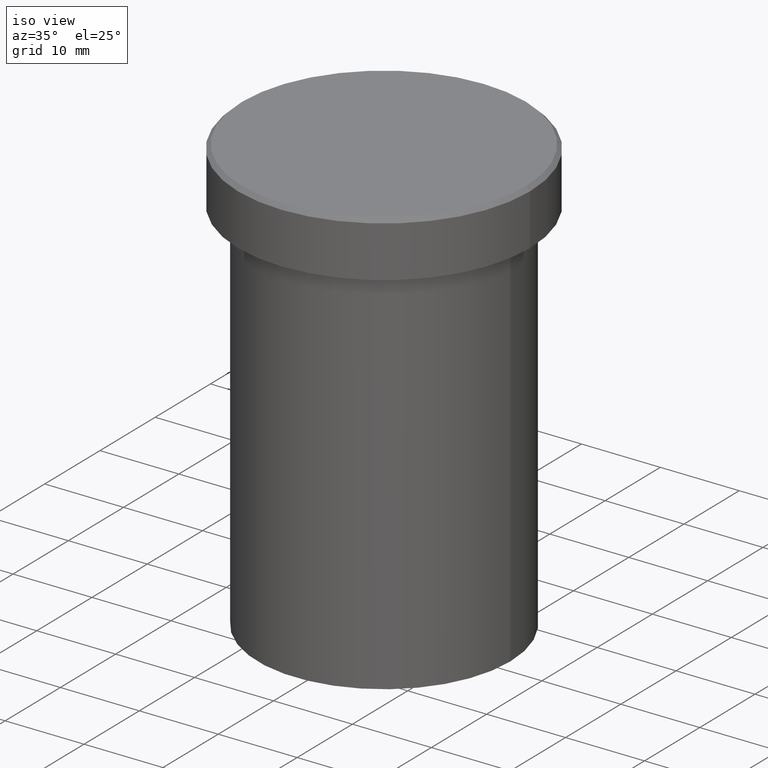
[diagram: clean part render]
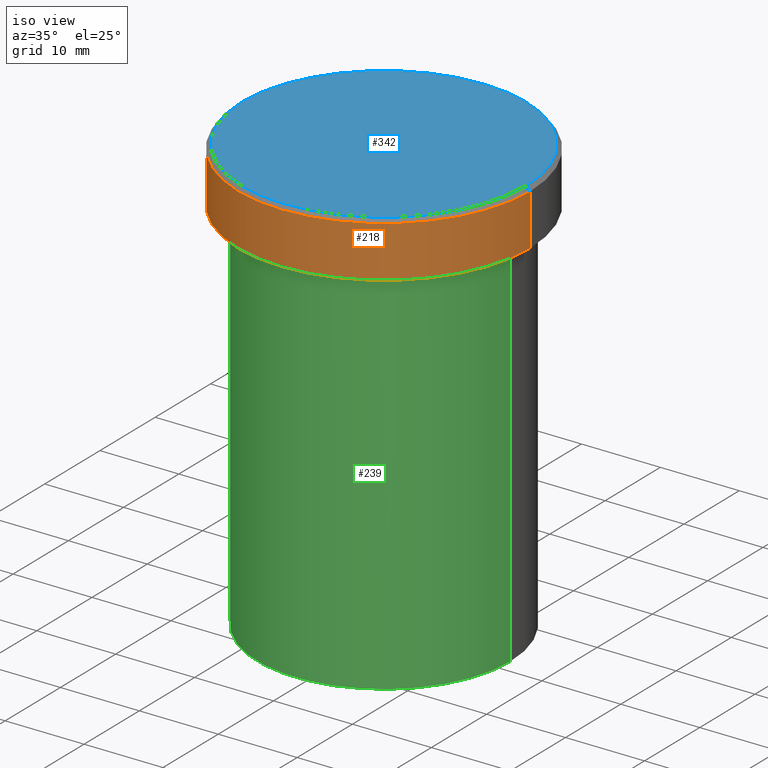
[diagram: same view with three faces highlighted in distinct colors, each labeled with its STEP entity id]
A machine part, iso view with three faces highlighted in distinct colors.
Their STEP definitions:

[orange] entity #218 — the highlighted cylindrical surface (partial cylindrical patch) has radius 18.5 mm, axis along (-0, -0, 1).
#10 = DIRECTION ( 'NONE',  ( 1.000000000000000000, 0.000000000000000000, 0.000000000000000000 ) ) ;
#16 = CARTESIAN_POINT ( 'NONE',  ( -18.50000000000000000, 2.265596578422603396E-15, -6.999999999999999112 ) ) ;
#28 = EDGE_LOOP ( 'NONE', ( #106, #155, #226, #389 ) ) ;
#37 = CARTESIAN_POINT ( 'NONE',  ( 0.000000000000000000, 0.000000000000000000, -0.5000000000000143219 ) ) ;
#41 = AXIS2_PLACEMENT_3D ( 'NONE', #320, #256, #230 ) ;
#45 = DIRECTION ( 'NONE',  ( 1.000000000000000000, 0.000000000000000000, 0.000000000000000000 ) ) ;
#46 = LINE ( 'NONE', #141, #346 ) ;
#74 = FACE_OUTER_BOUND ( 'NONE', #28, .T. ) ;
#97 = CIRCLE ( 'NONE', #41, 18.50000000000000000 ) ;
#99 = CARTESIAN_POINT ( 'NONE',  ( 0.000000000000000000, 0.000000000000000000, 0.000000000000000000 ) ) ;
#106 = ORIENTED_EDGE ( 'NONE', *, *, #175, .F. ) ;
#134 = CIRCLE ( 'NONE', #382, 18.50000000000000000 ) ;
#135 = CARTESIAN_POINT ( 'NONE',  ( 18.50000000000000000, 0.000000000000000000, -6.999999999999999112 ) ) ;
#141 = CARTESIAN_POINT ( 'NONE',  ( -18.50000000000000000, 2.265596578422603396E-15, 0.000000000000000000 ) ) ;
#146 = AXIS2_PLACEMENT_3D ( 'NONE', #99, #227, #45 ) ;
#151 = EDGE_CURVE ( 'NONE', #380, #338, #286, .T. ) ;
#155 = ORIENTED_EDGE ( 'NONE', *, *, #335, .T. ) ;
#160 = CYLINDRICAL_SURFACE ( 'NONE', #146, 18.50000000000000000 ) ;
#175 = EDGE_CURVE ( 'NONE', #322, #407, #46, .T. ) ;
#218 = ADVANCED_FACE ( 'NONE', ( #74 ), #160, .T. ) ;
#223 = CARTESIAN_POINT ( 'NONE',  ( 18.50000000000000000, 0.000000000000000000, -0.5000000000000143219 ) ) ;
#226 = ORIENTED_EDGE ( 'NONE', *, *, #151, .T. ) ;
#227 = DIRECTION ( 'NONE',  ( -0.000000000000000000, -0.000000000000000000, 1.000000000000000000 ) ) ;
#230 = DIRECTION ( 'NONE',  ( 1.000000000000000000, 0.000000000000000000, 0.000000000000000000 ) ) ;
#256 = DIRECTION ( 'NONE',  ( -0.000000000000000000, -0.000000000000000000, 1.000000000000000000 ) ) ;
#267 = DIRECTION ( 'NONE',  ( -0.000000000000000000, -0.000000000000000000, 1.000000000000000000 ) ) ;
#286 = LINE ( 'NONE', #391, #321 ) ;
#294 = DIRECTION ( 'NONE',  ( 0.000000000000000000, 0.000000000000000000, -1.000000000000000000 ) ) ;
#320 = CARTESIAN_POINT ( 'NONE',  ( 0.000000000000000000, 0.000000000000000000, -6.999999999999999112 ) ) ;
#321 = VECTOR ( 'NONE', #267, 1000.000000000000000 ) ;
#322 = VERTEX_POINT ( 'NONE', #16 ) ;
#335 = EDGE_CURVE ( 'NONE', #322, #380, #97, .T. ) ;
#338 = VERTEX_POINT ( 'NONE', #223 ) ;
#339 = CARTESIAN_POINT ( 'NONE',  ( -18.50000000000000000, 2.265596578422603396E-15, -0.5000000000000143219 ) ) ;
#346 = VECTOR ( 'NONE', #362, 1000.000000000000000 ) ;
#362 = DIRECTION ( 'NONE',  ( -0.000000000000000000, -0.000000000000000000, 1.000000000000000000 ) ) ;
#370 = EDGE_CURVE ( 'NONE', #338, #407, #134, .T. ) ;
#380 = VERTEX_POINT ( 'NONE', #135 ) ;
#382 = AXIS2_PLACEMENT_3D ( 'NONE', #37, #294, #10 ) ;
#389 = ORIENTED_EDGE ( 'NONE', *, *, #370, .T. ) ;
#391 = CARTESIAN_POINT ( 'NONE',  ( 18.50000000000000000, 0.000000000000000000, 0.000000000000000000 ) ) ;
#407 = VERTEX_POINT ( 'NONE', #339 ) ;

[blue] entity #342 — the highlighted planar face has unit normal (0, -0, 1).
#43 = CARTESIAN_POINT ( 'NONE',  ( -17.99999999999998224, 0.000000000000000000, 0.000000000000000000 ) ) ;
#66 = CARTESIAN_POINT ( 'NONE',  ( 17.99999999999998224, 2.234980408443918426E-15, 0.000000000000000000 ) ) ;
#67 = ORIENTED_EDGE ( 'NONE', *, *, #324, .T. ) ;
#85 = VERTEX_POINT ( 'NONE', #43 ) ;
#94 = DIRECTION ( 'NONE',  ( 1.000000000000000000, 0.000000000000000000, 0.000000000000000000 ) ) ;
#103 = CARTESIAN_POINT ( 'NONE',  ( 0.000000000000000000, 0.000000000000000000, 0.000000000000000000 ) ) ;
#139 = DIRECTION ( 'NONE',  ( -0.000000000000000000, -0.000000000000000000, 1.000000000000000000 ) ) ;
#168 = FACE_OUTER_BOUND ( 'NONE', #279, .T. ) ;
#187 = ORIENTED_EDGE ( 'NONE', *, *, #388, .T. ) ;
#201 = DIRECTION ( 'NONE',  ( 1.000000000000000000, 0.000000000000000000, 0.000000000000000000 ) ) ;
#225 = DIRECTION ( 'NONE',  ( -0.000000000000000000, -0.000000000000000000, 1.000000000000000000 ) ) ;
#242 = AXIS2_PLACEMENT_3D ( 'NONE', #103, #225, #357 ) ;
#249 = AXIS2_PLACEMENT_3D ( 'NONE', #265, #384, #94 ) ;
#265 = CARTESIAN_POINT ( 'NONE',  ( 0.000000000000000000, 0.000000000000000000, 0.000000000000000000 ) ) ;
#266 = PLANE ( 'NONE',  #249 ) ;
#279 = EDGE_LOOP ( 'NONE', ( #187, #67 ) ) ;
#324 = EDGE_CURVE ( 'NONE', #345, #85, #405, .T. ) ;
#336 = AXIS2_PLACEMENT_3D ( 'NONE', #379, #139, #201 ) ;
#340 = CIRCLE ( 'NONE', #242, 17.99999999999998224 ) ;
#342 = ADVANCED_FACE ( 'NONE', ( #168 ), #266, .T. ) ;
#345 = VERTEX_POINT ( 'NONE', #66 ) ;
#357 = DIRECTION ( 'NONE',  ( 1.000000000000000000, 0.000000000000000000, 0.000000000000000000 ) ) ;
#379 = CARTESIAN_POINT ( 'NONE',  ( 0.000000000000000000, 0.000000000000000000, 0.000000000000000000 ) ) ;
#384 = DIRECTION ( 'NONE',  ( 0.000000000000000000, -0.000000000000000000, 1.000000000000000000 ) ) ;
#388 = EDGE_CURVE ( 'NONE', #85, #345, #340, .T. ) ;
#405 = CIRCLE ( 'NONE', #336, 17.99999999999998224 ) ;

[green] entity #239 — the highlighted cylindrical surface (partial cylindrical patch) has radius 16 mm, axis along (-0, -0, 1).
#4 = CARTESIAN_POINT ( 'NONE',  ( 0.000000000000000000, 0.000000000000000000, -8.000000000000000000 ) ) ;
#24 = VERTEX_POINT ( 'NONE', #365 ) ;
#30 = LINE ( 'NONE', #289, #280 ) ;
#38 = EDGE_CURVE ( 'NONE', #24, #209, #276, .T. ) ;
#59 = VECTOR ( 'NONE', #194, 1000.000000000000000 ) ;
#62 = EDGE_CURVE ( 'NONE', #136, #209, #30, .T. ) ;
#75 = CIRCLE ( 'NONE', #270, 16.00000000000000000 ) ;
#82 = ORIENTED_EDGE ( 'NONE', *, *, #38, .F. ) ;
#93 = CARTESIAN_POINT ( 'NONE',  ( 16.00000000000000000, 0.000000000000000000, -8.000000000000000000 ) ) ;
#123 = ORIENTED_EDGE ( 'NONE', *, *, #166, .T. ) ;
#136 = VERTEX_POINT ( 'NONE', #247 ) ;
#138 = EDGE_LOOP ( 'NONE', ( #181, #123, #248, #82 ) ) ;
#166 = EDGE_CURVE ( 'NONE', #325, #136, #75, .T. ) ;
#170 = DIRECTION ( 'NONE',  ( 1.000000000000000000, 0.000000000000000000, 0.000000000000000000 ) ) ;
#171 = DIRECTION ( 'NONE',  ( -0.000000000000000000, -0.000000000000000000, 1.000000000000000000 ) ) ;
#181 = ORIENTED_EDGE ( 'NONE', *, *, #312, .F. ) ;
#188 = DIRECTION ( 'NONE',  ( -0.000000000000000000, -0.000000000000000000, 1.000000000000000000 ) ) ;
#190 = DIRECTION ( 'NONE',  ( 1.000000000000000000, 0.000000000000000000, 0.000000000000000000 ) ) ;
#194 = DIRECTION ( 'NONE',  ( -0.000000000000000000, -0.000000000000000000, 1.000000000000000000 ) ) ;
#206 = DIRECTION ( 'NONE',  ( -0.000000000000000000, -0.000000000000000000, 1.000000000000000000 ) ) ;
#209 = VERTEX_POINT ( 'NONE', #93 ) ;
#214 = AXIS2_PLACEMENT_3D ( 'NONE', #323, #206, #170 ) ;
#231 = CARTESIAN_POINT ( 'NONE',  ( 0.000000000000000000, 0.000000000000000000, -54.99999999999999289 ) ) ;
#239 = ADVANCED_FACE ( 'NONE', ( #358 ), #390, .T. ) ;
#247 = CARTESIAN_POINT ( 'NONE',  ( 16.00000000000000000, 0.000000000000000000, -54.99999999999999289 ) ) ;
#248 = ORIENTED_EDGE ( 'NONE', *, *, #62, .T. ) ;
#252 = DIRECTION ( 'NONE',  ( -0.000000000000000000, -0.000000000000000000, 1.000000000000000000 ) ) ;
#254 = LINE ( 'NONE', #387, #59 ) ;
#270 = AXIS2_PLACEMENT_3D ( 'NONE', #231, #171, #334 ) ;
#276 = CIRCLE ( 'NONE', #281, 16.00000000000000000 ) ;
#280 = VECTOR ( 'NONE', #252, 1000.000000000000000 ) ;
#281 = AXIS2_PLACEMENT_3D ( 'NONE', #4, #188, #190 ) ;
#289 = CARTESIAN_POINT ( 'NONE',  ( 16.00000000000000000, 0.000000000000000000, 0.000000000000000000 ) ) ;
#300 = CARTESIAN_POINT ( 'NONE',  ( -16.00000000000000000, 1.959434878635765131E-15, -54.99999999999999289 ) ) ;
#312 = EDGE_CURVE ( 'NONE', #325, #24, #254, .T. ) ;
#323 = CARTESIAN_POINT ( 'NONE',  ( 0.000000000000000000, 0.000000000000000000, 0.000000000000000000 ) ) ;
#325 = VERTEX_POINT ( 'NONE', #300 ) ;
#334 = DIRECTION ( 'NONE',  ( 1.000000000000000000, 0.000000000000000000, 0.000000000000000000 ) ) ;
#358 = FACE_OUTER_BOUND ( 'NONE', #138, .T. ) ;
#365 = CARTESIAN_POINT ( 'NONE',  ( -16.00000000000000000, 1.959434878635765131E-15, -8.000000000000000000 ) ) ;
#387 = CARTESIAN_POINT ( 'NONE',  ( -16.00000000000000000, 1.959434878635765131E-15, 0.000000000000000000 ) ) ;
#390 = CYLINDRICAL_SURFACE ( 'NONE', #214, 16.00000000000000000 ) ;